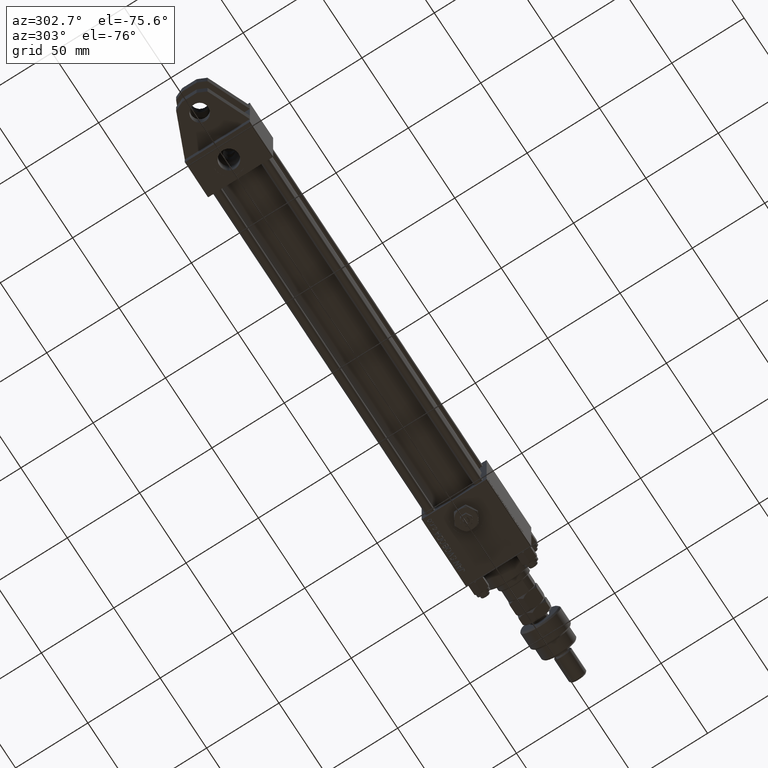
[diagram: clean part render]
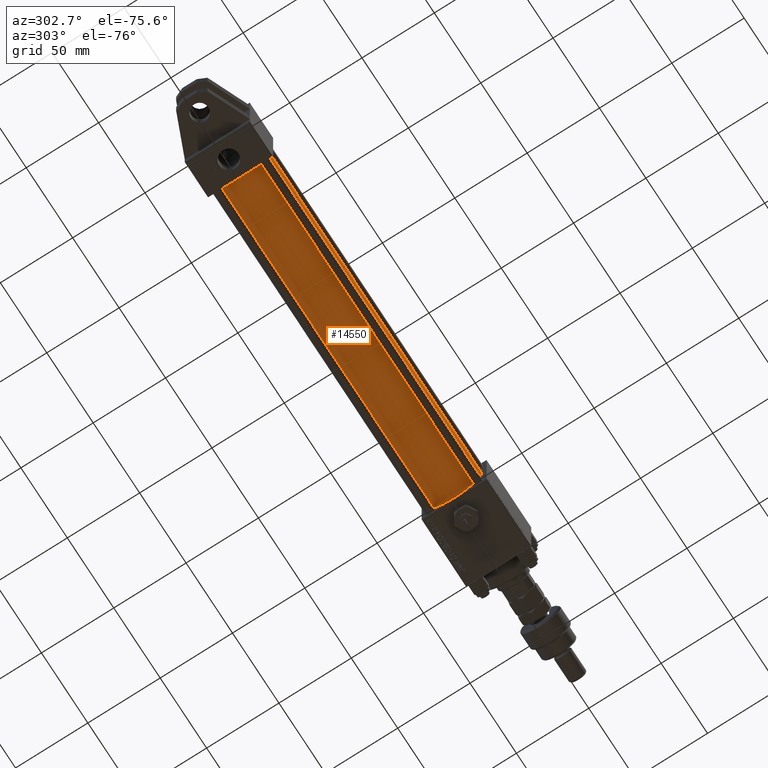
[diagram: same view with one face highlighted and labeled with its STEP entity id]
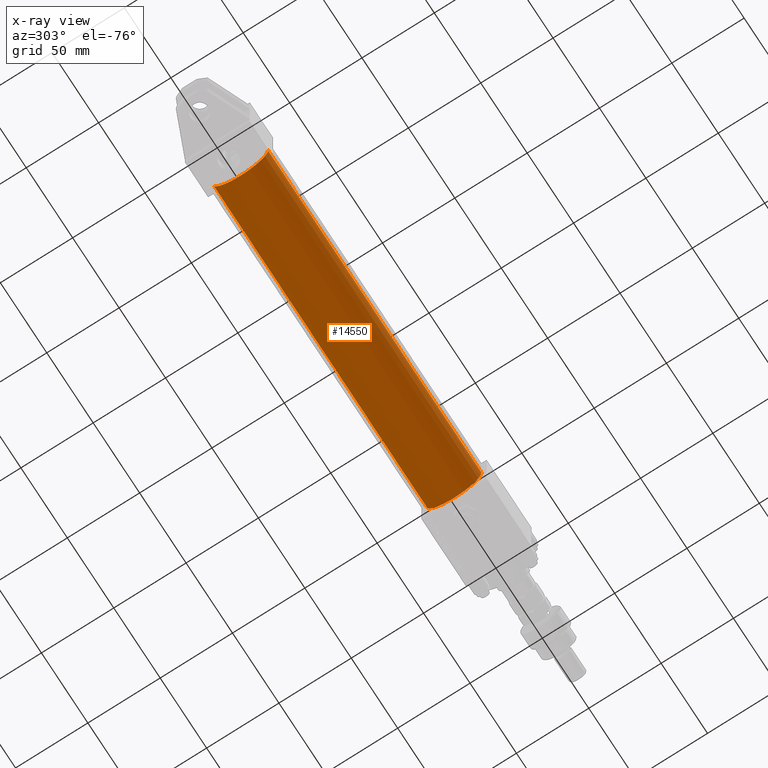
[diagram: x-ray of the same camera — body ghosted, the highlighted face saturated]
A machine part, auxiliary view. The second image highlights one B-rep face of the part: STEP entity #14550.
The next image is the same camera in x-ray: the body ghosted, the highlighted face saturated — about 0% of this face is hidden behind the body in this view.
In plain terms, the highlighted cylindrical surface (edge-blend (fillet) strip) has radius 19 mm, axis along (-1, -0, 0).
Its self-contained STEP definition (entity closure, byte-faithful):
#2727 = CARTESIAN_POINT ( 'NONE',  ( 255.0000000000000000, -3.469446951953614189E-15, 0.000000000000000000 ) ) ;
#3643 = VERTEX_POINT ( 'NONE', #44944 ) ;
#6067 = ORIENTED_EDGE ( 'NONE', *, *, #31510, .F. ) ;
#6807 = CARTESIAN_POINT ( 'NONE',  ( 255.0000000000000000, -3.469446951953614189E-15, 19.00000000000000000 ) ) ;
#7384 = DIRECTION ( 'NONE',  ( 0.000000000000000000, 0.000000000000000000, 1.000000000000000000 ) ) ;
#12334 = VERTEX_POINT ( 'NONE', #6807 ) ;
#12435 = AXIS2_PLACEMENT_3D ( 'NONE', #54229, #41310, #7384 ) ;
#12766 = AXIS2_PLACEMENT_3D ( 'NONE', #13859, #30694, #28725 ) ;
#13859 = CARTESIAN_POINT ( 'NONE',  ( 255.0000000000000000, -3.469446951953614189E-15, 0.000000000000000000 ) ) ;
#14550 = ADVANCED_FACE ( 'NONE', ( #41339 ), #28117, .T. ) ;
#15312 = EDGE_CURVE ( 'NONE', #30737, #3643, #39439, .T. ) ;
#17377 = CARTESIAN_POINT ( 'NONE',  ( 255.0000000000000000, -1.142618033573643218E-15, -19.00000000000000000 ) ) ;
#22873 = DIRECTION ( 'NONE',  ( -1.000000000000000000, -0.000000000000000000, -0.000000000000000000 ) ) ;
#23131 = CARTESIAN_POINT ( 'NONE',  ( 24.99999999999999289, -3.469446951953614189E-15, 19.00000000000000000 ) ) ;
#23702 = ORIENTED_EDGE ( 'NONE', *, *, #49527, .T. ) ;
#23796 = ORIENTED_EDGE ( 'NONE', *, *, #15312, .T. ) ;
#27155 = DIRECTION ( 'NONE',  ( -1.000000000000000000, -0.000000000000000000, -0.000000000000000000 ) ) ;
#28117 = CYLINDRICAL_SURFACE ( 'NONE', #42905, 19.00000000000000000 ) ;
#28725 = DIRECTION ( 'NONE',  ( 0.000000000000000000, 0.000000000000000000, -1.000000000000000000 ) ) ;
#28870 = VECTOR ( 'NONE', #22873, 1000.000000000000000 ) ;
#30694 = DIRECTION ( 'NONE',  ( 1.000000000000000000, 0.000000000000000000, 0.000000000000000000 ) ) ;
#30737 = VERTEX_POINT ( 'NONE', #17377 ) ;
#30776 = EDGE_LOOP ( 'NONE', ( #6067, #23796, #23702, #46232 ) ) ;
#31168 = CARTESIAN_POINT ( 'NONE',  ( 255.0000000000000000, -1.142618033573643218E-15, -19.00000000000000000 ) ) ;
#31510 = EDGE_CURVE ( 'NONE', #30737, #12334, #47124, .T. ) ;
#34015 = VERTEX_POINT ( 'NONE', #23131 ) ;
#37095 = CIRCLE ( 'NONE', #12435, 19.00000000000000000 ) ;
#39294 = LINE ( 'NONE', #52772, #51079 ) ;
#39439 = LINE ( 'NONE', #31168, #28870 ) ;
#41061 = DIRECTION ( 'NONE',  ( -1.000000000000000000, -0.000000000000000000, -0.000000000000000000 ) ) ;
#41310 = DIRECTION ( 'NONE',  ( 1.000000000000000000, -0.000000000000000000, 0.000000000000000000 ) ) ;
#41339 = FACE_OUTER_BOUND ( 'NONE', #30776, .T. ) ;
#42905 = AXIS2_PLACEMENT_3D ( 'NONE', #2727, #41061, #53459 ) ;
#44944 = CARTESIAN_POINT ( 'NONE',  ( 24.99999999999999289, -1.142618033573643218E-15, -19.00000000000000000 ) ) ;
#46232 = ORIENTED_EDGE ( 'NONE', *, *, #47129, .F. ) ;
#47124 = CIRCLE ( 'NONE', #12766, 19.00000000000000000 ) ;
#47129 = EDGE_CURVE ( 'NONE', #12334, #34015, #39294, .T. ) ;
#49527 = EDGE_CURVE ( 'NONE', #3643, #34015, #37095, .T. ) ;
#51079 = VECTOR ( 'NONE', #27155, 1000.000000000000000 ) ;
#52772 = CARTESIAN_POINT ( 'NONE',  ( 255.0000000000000000, -3.469446951953614189E-15, 19.00000000000000000 ) ) ;
#53459 = DIRECTION ( 'NONE',  ( 0.000000000000000000, 0.000000000000000000, 1.000000000000000000 ) ) ;
#54229 = CARTESIAN_POINT ( 'NONE',  ( 24.99999999999999289, -3.469446951953614189E-15, 0.000000000000000000 ) ) ;